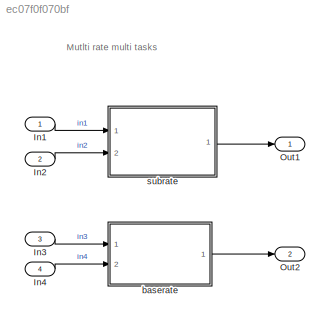
MODEL slx_ec07f0f070bf
KIND model
BLOCK [Inport] In1
  IconDisplay = Port number
  OutDataTypeStr = FLOAT32
BLOCK [Inport] In2
  IconDisplay = Port number
  OutDataTypeStr = UINT16
  Port = 2
BLOCK [Inport] In3
  IconDisplay = Port number
  OutDataTypeStr = FLOAT32
  Port = 3
BLOCK [Inport] In4
  IconDisplay = Port number
  OutDataTypeStr = UINT16
  Port = 4
BLOCK [Outport] Out1
  IconDisplay = Port number
  OutDataTypeStr = boolean
BLOCK [Outport] Out2
  IconDisplay = Port number
  OutDataTypeStr = boolean
  Port = 2
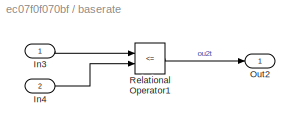
BLOCK [SubSystem] baserate
  FunctionWithSeparateData = off
  MaskHideContents = off
  MinAlgLoopOccurrences = off
  Opaque = off
  Ports = [2, 1]
  PropExecContextOutsideSubsystem = off
  RTWFcnNameOpts = Use subsystem name
  RTWSystemCode = Reusable function
  RequestExecContextInheritance = off
  TreatAsAtomicUnit = on
BLOCK [Inport] baserate/In3
  IconDisplay = Port number
  OutDataTypeStr = FLOAT32
BLOCK [Inport] baserate/In4
  IconDisplay = Port number
  OutDataTypeStr = UINT16
  Port = 2
BLOCK [Outport] baserate/Out2
  IconDisplay = Port number
  OutDataTypeStr = boolean
BLOCK [RelationalOperator] baserate/Relational Operator1
  InputSameDT = off
  Operator = <=
  OutDataTypeStr = boolean
  Ports = [2, 1]
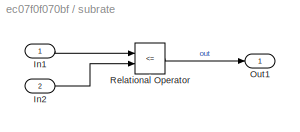
BLOCK [SubSystem] subrate
  FunctionWithSeparateData = off
  MaskHideContents = off
  MinAlgLoopOccurrences = off
  Opaque = off
  Ports = [2, 1]
  PropExecContextOutsideSubsystem = off
  RTWFcnNameOpts = Use subsystem name
  RTWSystemCode = Reusable function
  RequestExecContextInheritance = off
  SystemSampleTime = 0.6
  TreatAsAtomicUnit = on
BLOCK [Inport] subrate/In1
  IconDisplay = Port number
  OutDataTypeStr = FLOAT32
BLOCK [Inport] subrate/In2
  IconDisplay = Port number
  OutDataTypeStr = UINT16
  Port = 2
BLOCK [Outport] subrate/Out1
  IconDisplay = Port number
BLOCK [RelationalOperator] subrate/Relational Operator
  InputSameDT = off
  Operator = <=
  OutDataTypeStr = boolean
  Ports = [2, 1]
ANNOTATION (root): Mutlti rate multi tasks
LINE In1:1 -> subrate:1
LINE In2:1 -> subrate:2
LINE In3:1 -> baserate:1
LINE In4:1 -> baserate:2
LINE baserate/In3:1 -> baserate/Relational Operator1:1
LINE baserate/In4:1 -> baserate/Relational Operator1:2
LINE baserate/Relational Operator1:1 -> baserate/Out2:1
LINE baserate:1 -> Out2:1
LINE subrate/In1:1 -> subrate/Relational Operator:1
LINE subrate/In2:1 -> subrate/Relational Operator:2
LINE subrate/Relational Operator:1 -> subrate/Out1:1
LINE subrate:1 -> Out1:1
